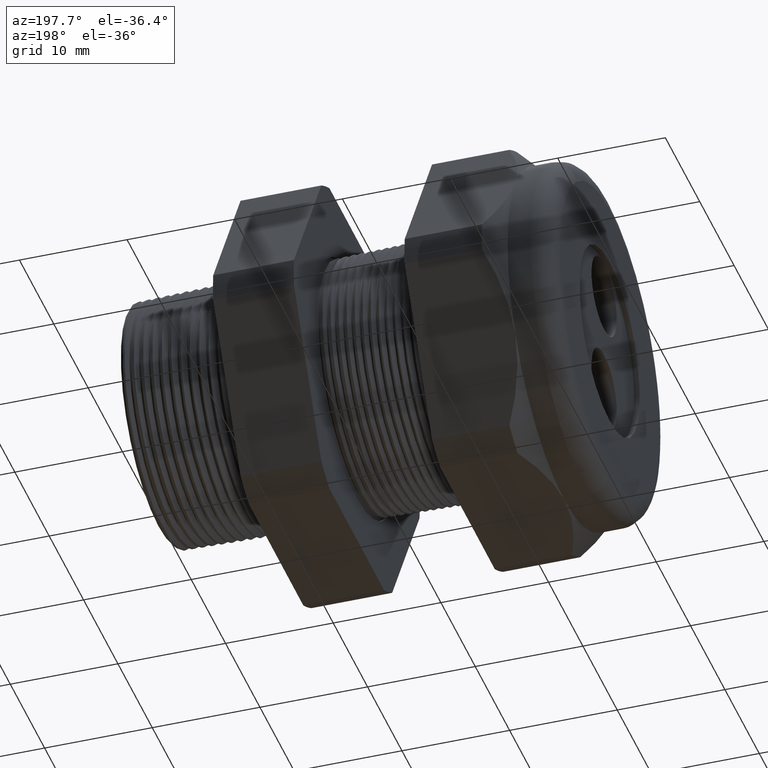
[diagram: clean part render]
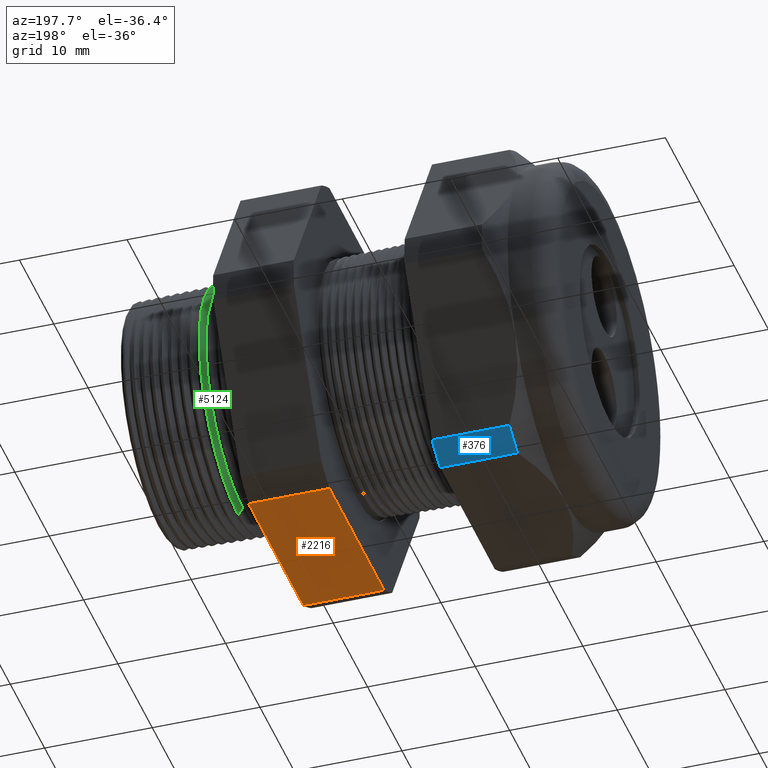
[diagram: same view with three faces highlighted in distinct colors, each labeled with its STEP entity id]
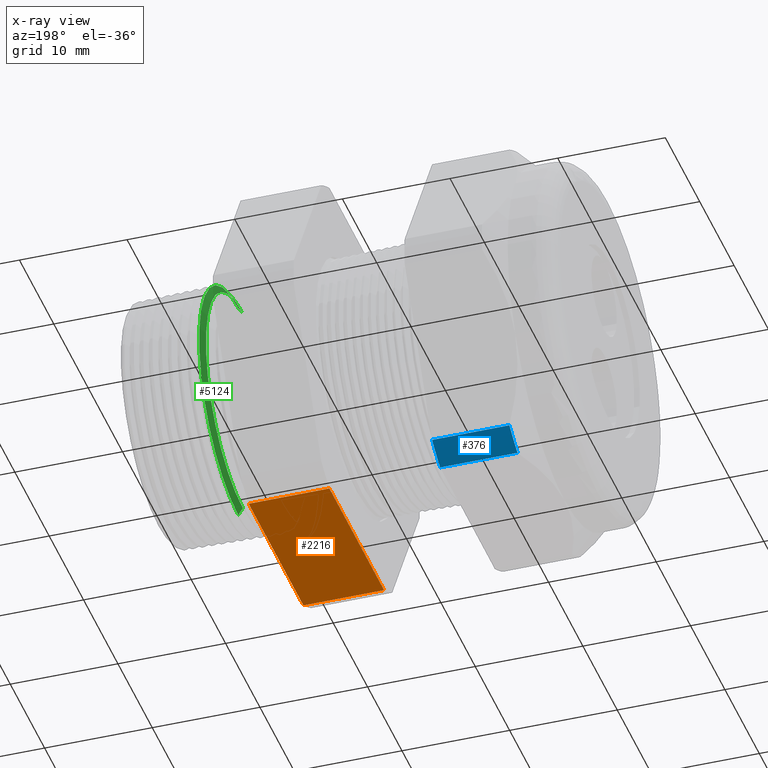
[diagram: x-ray of the same camera — body ghosted, the three highlighted faces saturated]
A machine part, auxiliary view with three faces highlighted in distinct colors.
The next image is the same camera in x-ray (body ghosted, the three faces saturated) — at least one of them is partly hidden behind the body in this view.
Their STEP definitions:

[orange] entity #2216 — the highlighted planar face has unit normal (0, 0, -1).
#479 = VERTEX_POINT ( 'NONE', #1826 ) ;
#536 = EDGE_CURVE ( 'NONE', #479, #537, #1919, .T. ) ;
#537 = VERTEX_POINT ( 'NONE', #1915 ) ;
#558 = VERTEX_POINT ( 'NONE', #2004 ) ;
#560 = EDGE_CURVE ( 'NONE', #558, #561, #2003, .T. ) ;
#561 = VERTEX_POINT ( 'NONE', #1999 ) ;
#1826 = CARTESIAN_POINT ( 'NONE',  ( -0.3100000000000000000, -0.3131489262315934100, -0.6500000000000001300 ) ) ;
#1915 = CARTESIAN_POINT ( 'NONE',  ( -0.3100000000000000000, 0.3131489262315934100, -0.6500000000000001300 ) ) ;
#1916 = DIRECTION ( 'NONE',  ( 0.0000000000000000000, 1.000000000000000000, 0.0000000000000000000 ) ) ;
#1917 = VECTOR ( 'NONE', #1916, 39.37007874015748100 ) ;
#1918 = CARTESIAN_POINT ( 'NONE',  ( -0.3100000000000000000, 1.300000000000000000, -0.6500000000000001300 ) ) ;
#1919 = LINE ( 'NONE', #1918, #1917 ) ;
#1999 = CARTESIAN_POINT ( 'NONE',  ( -0.6052755905511810800, -0.3131489262315934100, -0.6500000000000001300 ) ) ;
#2000 = DIRECTION ( 'NONE',  ( 0.0000000000000000000, -1.000000000000000000, 0.0000000000000000000 ) ) ;
#2001 = VECTOR ( 'NONE', #2000, 39.37007874015748100 ) ;
#2002 = CARTESIAN_POINT ( 'NONE',  ( -0.6052755905511809600, 1.300000000000000000, -0.6500000000000001300 ) ) ;
#2003 = LINE ( 'NONE', #2002, #2001 ) ;
#2004 = CARTESIAN_POINT ( 'NONE',  ( -0.6052755905511810800, 0.3131489262315934100, -0.6500000000000001300 ) ) ;
#2032 = EDGE_CURVE ( 'NONE', #479, #561, #2706, .T. ) ;
#2150 = ORIENTED_EDGE ( 'NONE', *, *, #560, .F. ) ;
#2216 = ADVANCED_FACE ( 'NONE', ( #2702 ), #2701, .T. ) ;
#2240 = EDGE_LOOP ( 'NONE', ( #2251, #2150, #4192, #3960 ) ) ;
#2251 = ORIENTED_EDGE ( 'NONE', *, *, #2032, .T. ) ;
#2697 = DIRECTION ( 'NONE',  ( -1.000000000000000000, 0.0000000000000000000, 0.0000000000000000000 ) ) ;
#2698 = DIRECTION ( 'NONE',  ( 0.0000000000000000000, 0.0000000000000000000, -1.000000000000000000 ) ) ;
#2699 = CARTESIAN_POINT ( 'NONE',  ( 0.1200000000000000900, 0.3131489262315934100, -0.6500000000000001300 ) ) ;
#2700 = AXIS2_PLACEMENT_3D ( 'NONE', #2699, #2698, #2697 ) ;
#2701 = PLANE ( 'NONE',  #2700 ) ;
#2702 = FACE_OUTER_BOUND ( 'NONE', #2240, .T. ) ;
#2703 = DIRECTION ( 'NONE',  ( -1.000000000000000000, 0.0000000000000000000, 0.0000000000000000000 ) ) ;
#2704 = VECTOR ( 'NONE', #2703, 39.37007874015748100 ) ;
#2705 = CARTESIAN_POINT ( 'NONE',  ( 0.1200000000000000900, -0.3131489262315934100, -0.6500000000000001300 ) ) ;
#2706 = LINE ( 'NONE', #2705, #2704 ) ;
#2725 = DIRECTION ( 'NONE',  ( -1.000000000000000000, 0.0000000000000000000, 0.0000000000000000000 ) ) ;
#2726 = VECTOR ( 'NONE', #2725, 39.37007874015748100 ) ;
#2727 = CARTESIAN_POINT ( 'NONE',  ( 0.1200000000000000900, 0.3131489262315934100, -0.6500000000000001300 ) ) ;
#2733 = LINE ( 'NONE', #2727, #2726 ) ;
#3960 = ORIENTED_EDGE ( 'NONE', *, *, #536, .F. ) ;
#4192 = ORIENTED_EDGE ( 'NONE', *, *, #4213, .F. ) ;
#4213 = EDGE_CURVE ( 'NONE', #537, #558, #2733, .T. ) ;

[blue] entity #376 — the highlighted cylindrical surface (partial cylindrical patch) has radius 18.3261 mm, axis along (-1, 0, 0).
#300 = ORIENTED_EDGE ( 'NONE', *, *, #301, .T. ) ;
#301 = EDGE_CURVE ( 'NONE', #381, #312, #1412, .T. ) ;
#302 = ORIENTED_EDGE ( 'NONE', *, *, #310, .F. ) ;
#303 = ORIENTED_EDGE ( 'NONE', *, *, #304, .F. ) ;
#304 = EDGE_CURVE ( 'NONE', #380, #311, #1406, .T. ) ;
#310 = EDGE_CURVE ( 'NONE', #311, #312, #1390, .T. ) ;
#311 = VERTEX_POINT ( 'NONE', #1386 ) ;
#312 = VERTEX_POINT ( 'NONE', #1385 ) ;
#376 = ADVANCED_FACE ( 'NONE', ( #1569 ), #1568, .T. ) ;
#377 = EDGE_LOOP ( 'NONE', ( #378, #300, #302, #303 ) ) ;
#378 = ORIENTED_EDGE ( 'NONE', *, *, #379, .T. ) ;
#379 = EDGE_CURVE ( 'NONE', #380, #381, #1567, .T. ) ;
#380 = VERTEX_POINT ( 'NONE', #1559 ) ;
#381 = VERTEX_POINT ( 'NONE', #1558 ) ;
#1344 = CARTESIAN_POINT ( 'NONE',  ( -1.010314960629921100, 0.0000000000000000000, 0.0000000000000000000 ) ) ;
#1385 = CARTESIAN_POINT ( 'NONE',  ( -1.293145669291338600, 0.4063420493440886800, -0.5961949252843791200 ) ) ;
#1386 = CARTESIAN_POINT ( 'NONE',  ( -1.010314960629921100, 0.4063420493440886800, -0.5961949252843790100 ) ) ;
#1387 = DIRECTION ( 'NONE',  ( -1.000000000000000000, 0.0000000000000000000, 0.0000000000000000000 ) ) ;
#1388 = VECTOR ( 'NONE', #1387, 39.37007874015748100 ) ;
#1389 = CARTESIAN_POINT ( 'NONE',  ( 0.1200000000000000900, 0.4063420493440886800, -0.5961949252843790100 ) ) ;
#1390 = LINE ( 'NONE', #1389, #1388 ) ;
#1403 = DIRECTION ( 'NONE',  ( 0.0000000000000000000, 0.0000000000000000000, -1.000000000000000000 ) ) ;
#1404 = DIRECTION ( 'NONE',  ( 1.000000000000000000, 0.0000000000000000000, 0.0000000000000000000 ) ) ;
#1405 = AXIS2_PLACEMENT_3D ( 'NONE', #1344, #1404, #1403 ) ;
#1406 = CIRCLE ( 'NONE', #1405, 0.7215000000000000300 ) ;
#1407 = DIRECTION ( 'NONE',  ( 0.0000000000000000000, 0.0000000000000000000, -1.000000000000000000 ) ) ;
#1408 = DIRECTION ( 'NONE',  ( 1.000000000000000000, 0.0000000000000000000, 0.0000000000000000000 ) ) ;
#1410 = CARTESIAN_POINT ( 'NONE',  ( -1.293145669291338600, 0.0000000000000000000, 0.0000000000000000000 ) ) ;
#1411 = AXIS2_PLACEMENT_3D ( 'NONE', #1410, #1408, #1407 ) ;
#1412 = CIRCLE ( 'NONE', #1411, 0.7215000000000000300 ) ;
#1558 = CARTESIAN_POINT ( 'NONE',  ( -1.293145669291338600, 0.3131489262315934100, -0.6500000000000001300 ) ) ;
#1559 = CARTESIAN_POINT ( 'NONE',  ( -1.010314960629921100, 0.3131489262315934100, -0.6500000000000001300 ) ) ;
#1560 = DIRECTION ( 'NONE',  ( -1.000000000000000000, 0.0000000000000000000, 0.0000000000000000000 ) ) ;
#1561 = VECTOR ( 'NONE', #1560, 39.37007874015748100 ) ;
#1562 = CARTESIAN_POINT ( 'NONE',  ( 0.1200000000000000900, 0.3131489262315934100, -0.6500000000000001300 ) ) ;
#1563 = DIRECTION ( 'NONE',  ( 0.0000000000000000000, 0.0000000000000000000, 1.000000000000000000 ) ) ;
#1564 = DIRECTION ( 'NONE',  ( -1.000000000000000000, 0.0000000000000000000, 0.0000000000000000000 ) ) ;
#1565 = CARTESIAN_POINT ( 'NONE',  ( 0.1200000000000000900, 0.0000000000000000000, 0.0000000000000000000 ) ) ;
#1566 = AXIS2_PLACEMENT_3D ( 'NONE', #1565, #1564, #1563 ) ;
#1567 = LINE ( 'NONE', #1562, #1561 ) ;
#1568 = CYLINDRICAL_SURFACE ( 'NONE', #1566, 0.7215000000000000300 ) ;
#1569 = FACE_OUTER_BOUND ( 'NONE', #377, .T. ) ;

[green] entity #5124 — the highlighted conical surface has half-angle 58.5 deg.
#3183 = DIRECTION ( 'NONE',  ( 0.5224985647159347000, 0.0000000000000000000, -0.8526401643541008400 ) ) ;
#3184 = VECTOR ( 'NONE', #3183, 39.37007874015748100 ) ;
#3185 = CARTESIAN_POINT ( 'NONE',  ( -0.1884707356790752100, 0.0000000000000000000, -0.4212184895733915900 ) ) ;
#3186 = LINE ( 'NONE', #3185, #3184 ) ;
#3188 = CARTESIAN_POINT ( 'NONE',  ( -0.1720291532523846000, 5.487014229667634400E-017, -0.4480487135954552300 ) ) ;
#3189 = DIRECTION ( 'NONE',  ( 0.0000000000000000000, 0.0000000000000000000, -1.000000000000000000 ) ) ;
#3190 = DIRECTION ( 'NONE',  ( -1.000000000000000000, 0.0000000000000000000, 0.0000000000000000000 ) ) ;
#3191 = CARTESIAN_POINT ( 'NONE',  ( -0.1720291532523846000, 0.0000000000000000000, 0.0000000000000000000 ) ) ;
#3192 = AXIS2_PLACEMENT_3D ( 'NONE', #3191, #3190, #3189 ) ;
#3193 = CIRCLE ( 'NONE', #3192, 0.4480487135954552300 ) ;
#3195 = CARTESIAN_POINT ( 'NONE',  ( -0.1720291532523846000, 0.0000000000000000000, 0.4480487135954552300 ) ) ;
#3596 = DIRECTION ( 'NONE',  ( 0.0000000000000000000, 0.0000000000000000000, -1.000000000000000000 ) ) ;
#3597 = DIRECTION ( 'NONE',  ( 1.000000000000000000, 0.0000000000000000000, 0.0000000000000000000 ) ) ;
#3598 = AXIS2_PLACEMENT_3D ( 'NONE', #3601, #3597, #3596 ) ;
#3599 = CONICAL_SURFACE ( 'NONE', #3598, 0.4212184895733915900, 1.021017612416699400 ) ;
#3601 = CARTESIAN_POINT ( 'NONE',  ( -0.1884707356790752100, 0.0000000000000000000, 0.0000000000000000000 ) ) ;
#3602 = DIRECTION ( 'NONE',  ( 0.0000000000000000000, 0.0000000000000000000, -1.000000000000000000 ) ) ;
#3603 = DIRECTION ( 'NONE',  ( 1.000000000000000000, 0.0000000000000000000, 0.0000000000000000000 ) ) ;
#3605 = CARTESIAN_POINT ( 'NONE',  ( -0.1884707356790752100, 0.0000000000000000000, 0.0000000000000000000 ) ) ;
#3606 = AXIS2_PLACEMENT_3D ( 'NONE', #3605, #3603, #3602 ) ;
#3607 = CIRCLE ( 'NONE', #3606, 0.4212184895733915900 ) ;
#3608 = FACE_OUTER_BOUND ( 'NONE', #5121, .T. ) ;
#3610 = CARTESIAN_POINT ( 'NONE',  ( -0.1884707356790752100, 5.327770295935951800E-017, -0.4212184895733915900 ) ) ;
#3611 = CARTESIAN_POINT ( 'NONE',  ( -0.1884707356790752100, 0.0000000000000000000, 0.4212184895733915900 ) ) ;
#3612 = DIRECTION ( 'NONE',  ( 0.5224985647159347000, 1.044183048100722800E-016, 0.8526401643541008400 ) ) ;
#3613 = VECTOR ( 'NONE', #3612, 39.37007874015748100 ) ;
#3614 = CARTESIAN_POINT ( 'NONE',  ( -0.1884707356790752100, 5.158438749977368000E-017, 0.4212184895733915900 ) ) ;
#3615 = LINE ( 'NONE', #3614, #3613 ) ;
#4913 = VERTEX_POINT ( 'NONE', #3195 ) ;
#4915 = EDGE_CURVE ( 'NONE', #4913, #4916, #3193, .T. ) ;
#4916 = VERTEX_POINT ( 'NONE', #3188 ) ;
#4917 = ORIENTED_EDGE ( 'NONE', *, *, #4915, .T. ) ;
#4919 = ORIENTED_EDGE ( 'NONE', *, *, #4921, .F. ) ;
#4921 = EDGE_CURVE ( 'NONE', #5116, #4916, #3186, .T. ) ;
#5113 = EDGE_CURVE ( 'NONE', #5115, #4913, #3615, .T. ) ;
#5114 = ORIENTED_EDGE ( 'NONE', *, *, #5113, .T. ) ;
#5115 = VERTEX_POINT ( 'NONE', #3611 ) ;
#5116 = VERTEX_POINT ( 'NONE', #3610 ) ;
#5121 = EDGE_LOOP ( 'NONE', ( #5122, #5114, #4917, #4919 ) ) ;
#5122 = ORIENTED_EDGE ( 'NONE', *, *, #5123, .T. ) ;
#5123 = EDGE_CURVE ( 'NONE', #5116, #5115, #3607, .T. ) ;
#5124 = ADVANCED_FACE ( 'NONE', ( #3608 ), #3599, .T. ) ;